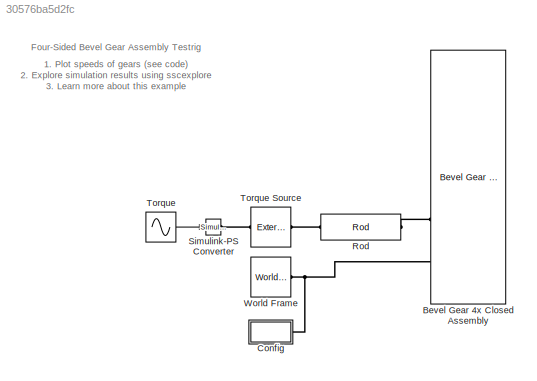
MODEL slx_30576ba5d2fc
KIND model
CONFIG AbsTol = auto
CONFIG EnableMultiTasking = on
CONFIG FixedStep = auto
CONFIG MaxStep = 1e-2
CONFIG MinStep = auto
CONFIG RelTol = 1e-3
CONFIG SampleTimeConstraint = Unconstrained
CONFIG Solver = VariableStepAuto
CONFIG SolverName = VariableStepAuto
CONFIG StartTime = 0.0
CONFIG StopTime = 10.0
BLOCK [Reference] Bevel Gear 4x Closed Assembly  REF=Multibody_Parts_Lib/Gears/Assemblies/Bevel Gear 4x
Closed Assembly
  Ports = [0, 0, 0, 0, 0, 5]
  SourceBlock = Multibody_Parts_Lib/Gears/Assemblies/Bevel Gear 4x\nClosed Assembly
  SourceProductName = Simscape Multibody Parts Library
  SourceType = Bevel Gear Assembly
  Tag = PublishSubsystem
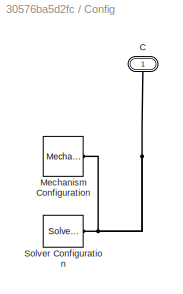
BLOCK [SubSystem] Config
  Ports = [0, 0, 0, 0, 0, 0, 1]
  RequestExecContextInheritance = off
BLOCK [PMIOPort] Config/C
  Side = Right
BLOCK [Reference] Config/Mechanism Configuration  REF=sm_lib/Utilities/Mechanism
Configuration
  Ports = [0, 0, 0, 0, 0, 0, 1]
  SourceBlock = sm_lib/Utilities/Mechanism\nConfiguration
  SourceProductBaseCode = MS
  SourceProductName = Simscape Multibody
  SourceType = Mechanism\nConfiguration
BLOCK [Reference] Config/Solver Configuration  REF=nesl_utility/Solver
Configuration
  Ports = [0, 0, 0, 0, 0, 0, 1]
  SourceBlock = nesl_utility/Solver\nConfiguration
  SourceProductBaseCode = SS
  SourceProductName = Simscape
  SourceType = Solver\nConfiguration
BLOCK [Reference] Rod  REF=Multibody_Parts_Lib/Basic/Rod
  Ports = [0, 0, 0, 0, 0, 1, 1]
  SourceBlock = Multibody_Parts_Lib/Basic/Rod
  SourceProductName = Simscape Multibody Parts Library
  SourceType = Rod
BLOCK [Reference] Simulink-PS Converter  REF=nesl_utility/Simulink-PS
Converter
  Ports = [1, 0, 0, 0, 0, 0, 1]
  SourceBlock = nesl_utility/Simulink-PS\nConverter
  SourceProductBaseCode = SS
  SourceProductName = Simscape
  SourceType = Simulink-PS\nConverter
BLOCK [Sin] Torque
  Amplitude = 10
  Frequency = pi
  Phase = pi/2
  Ports = [0, 1]
  SampleTime = 0
BLOCK [Reference] Torque Source  REF=sm_lib/Forces and
Torques/External Force
and Torque
  Ports = [0, 0, 0, 0, 0, 1, 1]
  SourceBlock = sm_lib/Forces and\nTorques/External Force\nand Torque
  SourceProductBaseCode = MS
  SourceProductName = Simscape Multibody
  SourceType = External Force\nand Torque
BLOCK [Reference] World Frame  REF=sm_lib/Frames and
Transforms/World Frame
  Ports = [0, 0, 0, 0, 0, 0, 1]
  SourceBlock = sm_lib/Frames and\nTransforms/World Frame
  SourceProductBaseCode = MS
  SourceProductName = Simscape Multibody
  SourceType = World Frame
ANNOTATION (root): 1. Plot speeds of gears ( see code ) 2. Explore simulation results using sscexplore 3. Learn more about this example
ANNOTATION (root): Four-Sided Bevel Gear Assembly Testrig
LINE Torque:1 -> Simulink-PS Converter:1
PLINE Bevel Gear 4x Closed Assembly:LConn4 -- Rod:RConn1
PNET net1: Bevel Gear 4x Closed Assembly:LConn5 -- Config:RConn1 -- World Frame:RConn1
PNET net2: Config/C:RConn1 -- Config/Mechanism Configuration:RConn1 -- Config/Solver Configuration:RConn1
PLINE Rod:LConn1 -- Torque Source:RConn1
PLINE Simulink-PS Converter:RConn1 -- Torque Source:LConn1
note: PNET lines group multi-terminal physical nets as a canonical sorted terminal list (undirected conserving connections); 2-terminal nets keep the pairwise PLINE form
